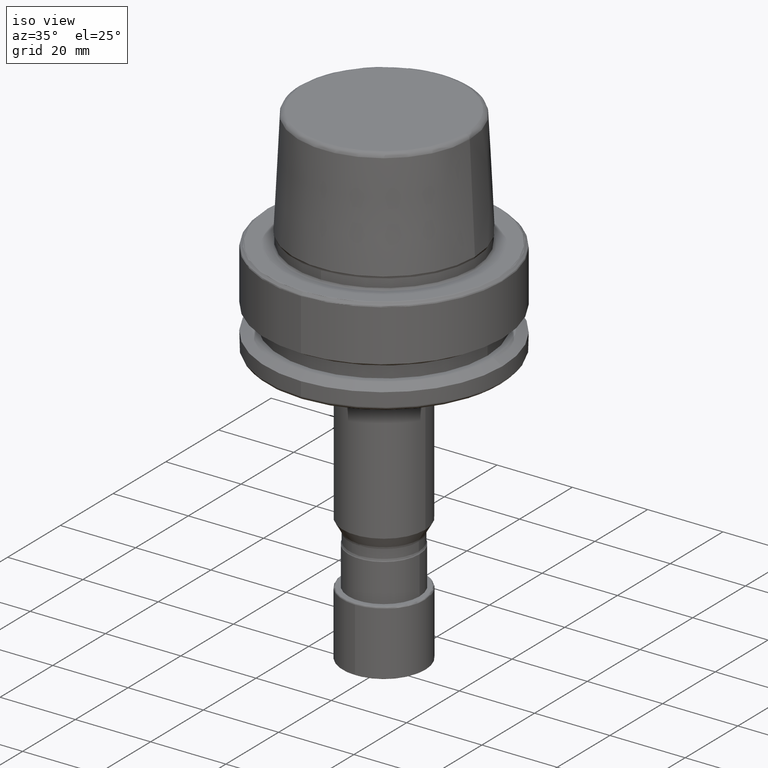
[diagram: clean part render]
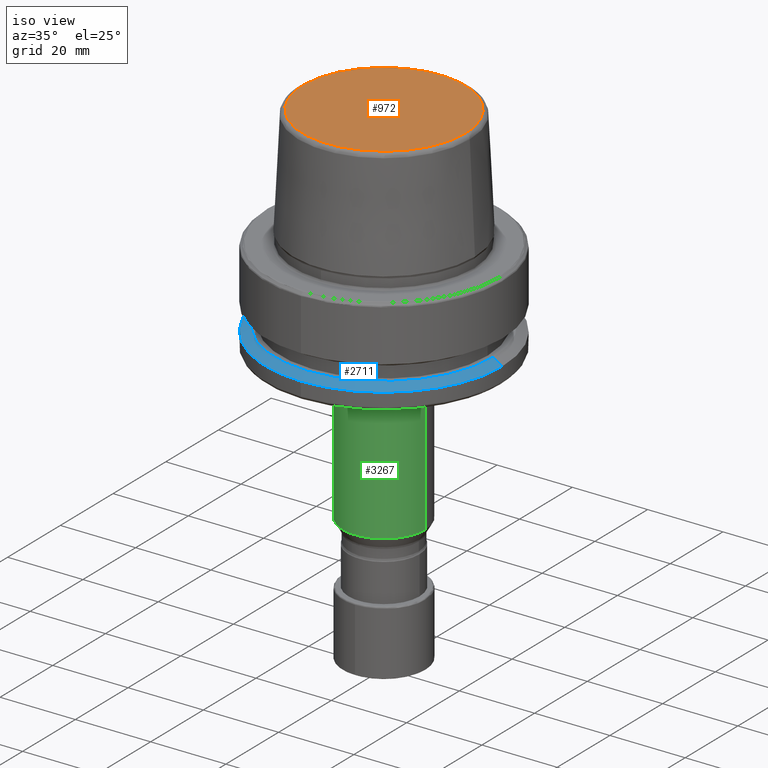
[diagram: same view with three faces highlighted in distinct colors, each labeled with its STEP entity id]
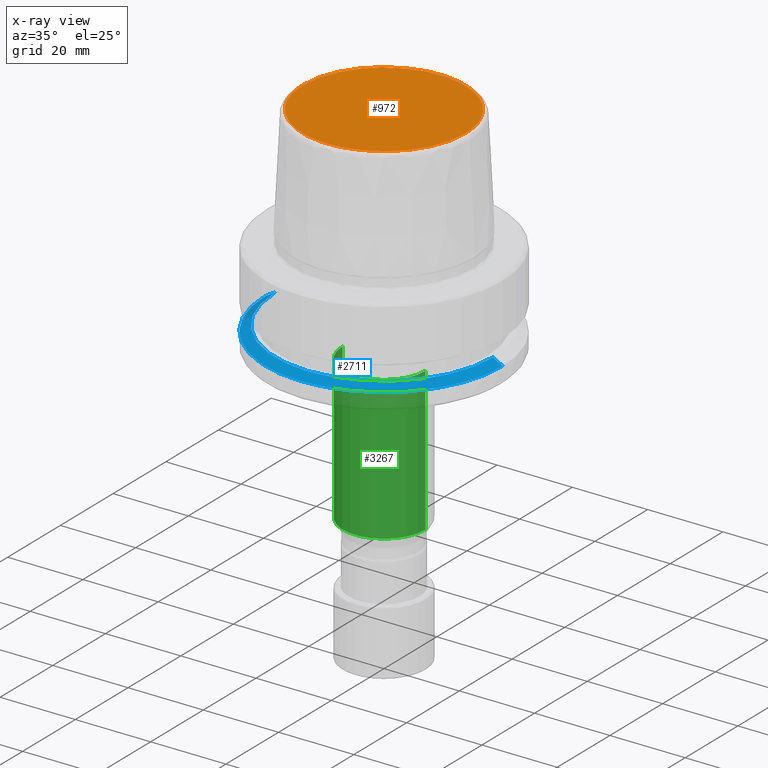
[diagram: x-ray of the same camera — body ghosted, the three highlighted faces saturated]
A machine part, iso view with three faces highlighted in distinct colors.
The next image is the same camera in x-ray (body ghosted, the three faces saturated) — at least one of them is partly hidden behind the body in this view.
Their STEP definitions:

[orange] entity #972 — the highlighted planar face has unit normal (0, 0, -1).
#672 =( BOUNDED_CURVE ( )  B_SPLINE_CURVE ( 3, ( #2468, #2945, #1473, #3197 ),
 .UNSPECIFIED., .F., .T. ) 
 B_SPLINE_CURVE_WITH_KNOTS ( ( 4, 4 ),
 ( 0.0000000000000000000, 1.000000000000000000 ),
 .UNSPECIFIED. ) 
 CURVE ( )  GEOMETRIC_REPRESENTATION_ITEM ( )  RATIONAL_B_SPLINE_CURVE ( ( 0.9580048709100972300, 0.3193349569700321700, 0.3193349569700321700, 0.9580048709100972300 ) ) 
 REPRESENTATION_ITEM ( '' )  );
#942 = CARTESIAN_POINT ( 'NONE',  ( -21.58108272221028700, 0.0000000000000000000, 31.89999999979466200 ) ) ;
#947 = VERTEX_POINT ( 'NONE', #2030 ) ;
#949 =( BOUNDED_CURVE ( )  B_SPLINE_CURVE ( 3, ( #1350, #2830, #3083, #1630 ),
 .UNSPECIFIED., .F., .T. ) 
 B_SPLINE_CURVE_WITH_KNOTS ( ( 4, 4 ),
 ( 0.0000000000000000000, 1.000000000000000000 ),
 .UNSPECIFIED. ) 
 CURVE ( )  GEOMETRIC_REPRESENTATION_ITEM ( )  RATIONAL_B_SPLINE_CURVE ( ( 0.9580048709100960100, 0.3193349569700317800, 0.3193349569700317800, 0.9580048709100960100 ) ) 
 REPRESENTATION_ITEM ( '' )  );
#972 = ADVANCED_FACE ( 'NONE', ( #1527 ), #2737, .F. ) ;
#998 = DIRECTION ( 'NONE',  ( -1.000000000000000000, 0.0000000000000000000, 0.0000000000000000000 ) ) ;
#1148 = VERTEX_POINT ( 'NONE', #942 ) ;
#1166 = EDGE_CURVE ( 'NONE', #1148, #947, #672, .T. ) ;
#1253 = EDGE_LOOP ( 'NONE', ( #2477, #3050 ) ) ;
#1350 = CARTESIAN_POINT ( 'NONE',  ( 21.58108272221028700, 0.0000000000000000000, 31.89999999979466200 ) ) ;
#1473 = CARTESIAN_POINT ( 'NONE',  ( 21.58108272589979700, 43.16216545265412200, 31.89999999965776900 ) ) ;
#1517 = CARTESIAN_POINT ( 'NONE',  ( 21.84005572000000600, -21.84005572000000600, 31.89999999999999900 ) ) ;
#1527 = FACE_OUTER_BOUND ( 'NONE', #1253, .T. ) ;
#1630 = CARTESIAN_POINT ( 'NONE',  ( -21.58108272221028700, 0.0000000000000000000, 31.89999999979466200 ) ) ;
#1717 = AXIS2_PLACEMENT_3D ( 'NONE', #1517, #2505, #998 ) ;
#2030 = CARTESIAN_POINT ( 'NONE',  ( 21.58108272221028700, 0.0000000000000000000, 31.89999999979466200 ) ) ;
#2099 = EDGE_CURVE ( 'NONE', #947, #1148, #949, .T. ) ;
#2468 = CARTESIAN_POINT ( 'NONE',  ( -21.58108272221028300, 0.0000000000000000000, 31.89999999979466200 ) ) ;
#2477 = ORIENTED_EDGE ( 'NONE', *, *, #2099, .F. ) ;
#2505 = DIRECTION ( 'NONE',  ( 0.0000000000000000000, 0.0000000000000000000, -1.000000000000000000 ) ) ;
#2737 = PLANE ( 'NONE',  #1717 ) ;
#2830 = CARTESIAN_POINT ( 'NONE',  ( 21.58108272589980100, -43.16216545265412200, 31.89999999965778300 ) ) ;
#2945 = CARTESIAN_POINT ( 'NONE',  ( -21.58108272589979700, 43.16216545265412200, 31.89999999965776900 ) ) ;
#3050 = ORIENTED_EDGE ( 'NONE', *, *, #1166, .F. ) ;
#3083 = CARTESIAN_POINT ( 'NONE',  ( -21.58108272589980100, -43.16216545265412200, 31.89999999965778300 ) ) ;
#3197 = CARTESIAN_POINT ( 'NONE',  ( 21.58108272221028300, 0.0000000000000000000, 31.89999999979466200 ) ) ;

[blue] entity #2711 — the highlighted conical surface has half-angle 60 deg.
#49 = CONICAL_SURFACE ( 'NONE', #2521, 31.49999999736794700, 1.047197551196597400 ) ;
#56 = AXIS2_PLACEMENT_3D ( 'NONE', #1501, #3215, #1769 ) ;
#67 = VERTEX_POINT ( 'NONE', #602 ) ;
#156 = ORIENTED_EDGE ( 'NONE', *, *, #2353, .T. ) ;
#169 = DIRECTION ( 'NONE',  ( 1.000000000000000000, 0.0000000000000000000, 0.0000000000000000000 ) ) ;
#602 = CARTESIAN_POINT ( 'NONE',  ( 31.49999999736794700, 3.857637416991828600E-015, -21.35544551591030100 ) ) ;
#728 = ORIENTED_EDGE ( 'NONE', *, *, #2514, .F. ) ;
#740 = VERTEX_POINT ( 'NONE', #1188 ) ;
#747 = EDGE_LOOP ( 'NONE', ( #1953, #728, #2094, #1000, #156 ) ) ;
#869 = CARTESIAN_POINT ( 'NONE',  ( 0.0000000000000000000, 0.0000000000000000000, -21.35544551591030100 ) ) ;
#918 = CARTESIAN_POINT ( 'NONE',  ( 0.0000000000000000000, 0.0000000000000000000, -19.90000000000000200 ) ) ;
#1000 = ORIENTED_EDGE ( 'NONE', *, *, #3324, .T. ) ;
#1180 = DIRECTION ( 'NONE',  ( 1.000000000000000000, 0.0000000000000000000, 0.0000000000000000000 ) ) ;
#1188 = CARTESIAN_POINT ( 'NONE',  ( 0.0000000000000000000, -31.49999999736794700, -21.35544551591030100 ) ) ;
#1192 = CARTESIAN_POINT ( 'NONE',  ( -31.49999999736794700, 0.0000000000000000000, -21.35544551591030100 ) ) ;
#1343 = VECTOR ( 'NONE', #2714, 1000.000000000000100 ) ;
#1380 = DIRECTION ( 'NONE',  ( 0.0000000000000000000, 0.0000000000000000000, -1.000000000000000000 ) ) ;
#1439 = VECTOR ( 'NONE', #3213, 1000.000000000000100 ) ;
#1471 = CIRCLE ( 'NONE', #1788, 28.97909441616301200 ) ;
#1501 = CARTESIAN_POINT ( 'NONE',  ( 0.0000000000000000000, 0.0000000000000000000, -21.35544551591030100 ) ) ;
#1640 = VERTEX_POINT ( 'NONE', #3266 ) ;
#1745 = CARTESIAN_POINT ( 'NONE',  ( -31.49999999736794700, 0.0000000000000000000, -21.35544551591030100 ) ) ;
#1769 = DIRECTION ( 'NONE',  ( 1.000000000000000000, 0.0000000000000000000, 0.0000000000000000000 ) ) ;
#1788 = AXIS2_PLACEMENT_3D ( 'NONE', #918, #2684, #1180 ) ;
#1810 = DIRECTION ( 'NONE',  ( -0.0000000000000000000, -0.0000000000000000000, 1.000000000000000000 ) ) ;
#1892 = LINE ( 'NONE', #1745, #1343 ) ;
#1953 = ORIENTED_EDGE ( 'NONE', *, *, #2292, .F. ) ;
#2015 = CARTESIAN_POINT ( 'NONE',  ( 31.49999999736794700, 3.857637416991828600E-015, -21.35544551591030100 ) ) ;
#2075 = FACE_OUTER_BOUND ( 'NONE', #747, .T. ) ;
#2094 = ORIENTED_EDGE ( 'NONE', *, *, #2255, .T. ) ;
#2129 = VERTEX_POINT ( 'NONE', #3343 ) ;
#2209 = LINE ( 'NONE', #2015, #1439 ) ;
#2212 = VERTEX_POINT ( 'NONE', #1192 ) ;
#2255 = EDGE_CURVE ( 'NONE', #1640, #2212, #1892, .T. ) ;
#2292 = EDGE_CURVE ( 'NONE', #2129, #67, #2209, .T. ) ;
#2353 = EDGE_CURVE ( 'NONE', #740, #67, #3290, .T. ) ;
#2514 = EDGE_CURVE ( 'NONE', #1640, #2129, #1471, .T. ) ;
#2521 = AXIS2_PLACEMENT_3D ( 'NONE', #869, #1380, #2632 ) ;
#2632 = DIRECTION ( 'NONE',  ( -1.000000000000000000, 0.0000000000000000000, 0.0000000000000000000 ) ) ;
#2684 = DIRECTION ( 'NONE',  ( -0.0000000000000000000, -0.0000000000000000000, 1.000000000000000000 ) ) ;
#2711 = ADVANCED_FACE ( 'NONE', ( #2075 ), #49, .T. ) ;
#2714 = DIRECTION ( 'NONE',  ( -0.8660254037844383700, 0.0000000000000000000, -0.5000000000000003300 ) ) ;
#2970 = AXIS2_PLACEMENT_3D ( 'NONE', #3253, #1810, #169 ) ;
#3121 = CIRCLE ( 'NONE', #56, 31.49999999736794700 ) ;
#3213 = DIRECTION ( 'NONE',  ( 0.8660254037844383700, 1.060575238724906500E-016, -0.5000000000000003300 ) ) ;
#3215 = DIRECTION ( 'NONE',  ( -0.0000000000000000000, -0.0000000000000000000, 1.000000000000000000 ) ) ;
#3253 = CARTESIAN_POINT ( 'NONE',  ( 0.0000000000000000000, 0.0000000000000000000, -21.35544551591030100 ) ) ;
#3266 = CARTESIAN_POINT ( 'NONE',  ( -28.97909441616301200, 0.0000000000000000000, -19.90000000000000200 ) ) ;
#3290 = CIRCLE ( 'NONE', #2970, 31.49999999736794700 ) ;
#3324 = EDGE_CURVE ( 'NONE', #2212, #740, #3121, .T. ) ;
#3343 = CARTESIAN_POINT ( 'NONE',  ( 28.97909441616301200, 3.703276469443062200E-015, -19.90000000000000200 ) ) ;

[green] entity #3267 — the highlighted cylindrical surface (partial cylindrical patch) has radius 11 mm, axis along (0, 0, -1).
#79 = AXIS2_PLACEMENT_3D ( 'NONE', #2381, #840, #2611 ) ;
#84 = CARTESIAN_POINT ( 'NONE',  ( 0.0000000000000000000, 0.0000000000000000000, -28.00000000000000000 ) ) ;
#146 = CARTESIAN_POINT ( 'NONE',  ( 10.99999999989383600, -1.504090833363373300E-009, -27.99999999962753300 ) ) ;
#274 = ORIENTED_EDGE ( 'NONE', *, *, #1293, .F. ) ;
#474 = LINE ( 'NONE', #833, #723 ) ;
#547 = DIRECTION ( 'NONE',  ( 1.577021341797097600E-016, 0.0000000000000000000, -1.000000000000000000 ) ) ;
#549 = CIRCLE ( 'NONE', #79, 11.00000000000000000 ) ;
#555 = EDGE_LOOP ( 'NONE', ( #274, #1064, #819, #878 ) ) ;
#648 = DIRECTION ( 'NONE',  ( -1.000000000000000000, 0.0000000000000000000, -3.154042683594194600E-016 ) ) ;
#656 = EDGE_CURVE ( 'NONE', #2444, #1763, #3208, .T. ) ;
#723 = VECTOR ( 'NONE', #547, 1000.000000000000000 ) ;
#819 = ORIENTED_EDGE ( 'NONE', *, *, #1409, .T. ) ;
#833 = CARTESIAN_POINT ( 'NONE',  ( 11.00000000000000000, 1.347111479062088400E-015, -27.99999999999999600 ) ) ;
#840 = DIRECTION ( 'NONE',  ( -0.0000000000000000000, -0.0000000000000000000, 1.000000000000000000 ) ) ;
#878 = ORIENTED_EDGE ( 'NONE', *, *, #656, .T. ) ;
#994 = VERTEX_POINT ( 'NONE', #2294 ) ;
#1064 = ORIENTED_EDGE ( 'NONE', *, *, #1987, .F. ) ;
#1293 = EDGE_CURVE ( 'NONE', #1577, #1763, #474, .T. ) ;
#1300 = FACE_OUTER_BOUND ( 'NONE', #555, .T. ) ;
#1396 = LINE ( 'NONE', #1676, #2285 ) ;
#1402 = DIRECTION ( 'NONE',  ( 1.577021341797097600E-016, 0.0000000000000000000, -1.000000000000000000 ) ) ;
#1409 = EDGE_CURVE ( 'NONE', #994, #2444, #1396, .T. ) ;
#1493 = DIRECTION ( 'NONE',  ( 0.0000000000000000000, 0.0000000000000000000, 1.000000000000000000 ) ) ;
#1577 = VERTEX_POINT ( 'NONE', #146 ) ;
#1676 = CARTESIAN_POINT ( 'NONE',  ( -11.00000000000000000, 0.0000000000000000000, -28.00000000000000400 ) ) ;
#1677 = DIRECTION ( 'NONE',  ( 0.0000000000000000000, -1.000000000000000000, -7.569702440626067900E-015 ) ) ;
#1763 = VERTEX_POINT ( 'NONE', #3045 ) ;
#1987 = EDGE_CURVE ( 'NONE', #994, #1577, #549, .T. ) ;
#1990 = DIRECTION ( 'NONE',  ( 1.577021341797097600E-016, 0.0000000000000000000, -1.000000000000000000 ) ) ;
#2059 = CARTESIAN_POINT ( 'NONE',  ( -10.99999999999999800, 0.0000000000000000000, -66.07999999999991300 ) ) ;
#2285 = VECTOR ( 'NONE', #1402, 1000.000000000000000 ) ;
#2294 = CARTESIAN_POINT ( 'NONE',  ( -10.99999999989383600, -2.821059358337763000E-009, -27.99999999999999600 ) ) ;
#2381 = CARTESIAN_POINT ( 'NONE',  ( 0.0000000000000000000, 0.0000000000000000000, -27.99999999999999600 ) ) ;
#2444 = VERTEX_POINT ( 'NONE', #2059 ) ;
#2611 = DIRECTION ( 'NONE',  ( 0.0000000000000000000, 1.000000000000000000, -3.154042683594194600E-016 ) ) ;
#2745 = AXIS2_PLACEMENT_3D ( 'NONE', #84, #1990, #648 ) ;
#2959 = CARTESIAN_POINT ( 'NONE',  ( 0.0000000000000000000, 0.0000000000000000000, -66.07999999999991300 ) ) ;
#2977 = CYLINDRICAL_SURFACE ( 'NONE', #2745, 11.00000000000000000 ) ;
#3045 = CARTESIAN_POINT ( 'NONE',  ( 11.00000000000000000, 1.347111479062088400E-015, -66.07999999999991300 ) ) ;
#3208 = CIRCLE ( 'NONE', #3254, 11.00000000000000000 ) ;
#3254 = AXIS2_PLACEMENT_3D ( 'NONE', #2959, #1493, #1677 ) ;
#3267 = ADVANCED_FACE ( 'NONE', ( #1300 ), #2977, .T. ) ;